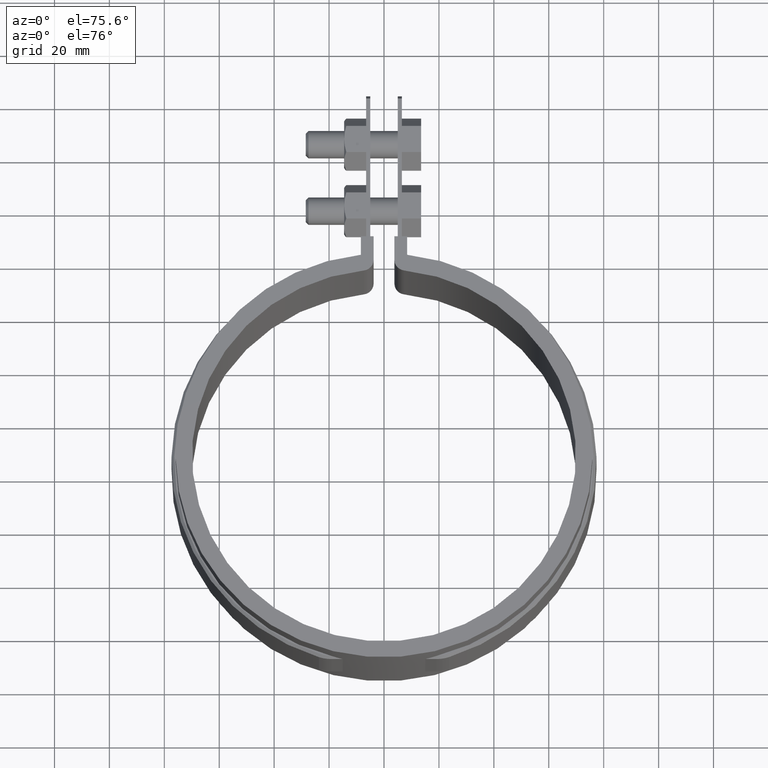
[diagram: clean part render]
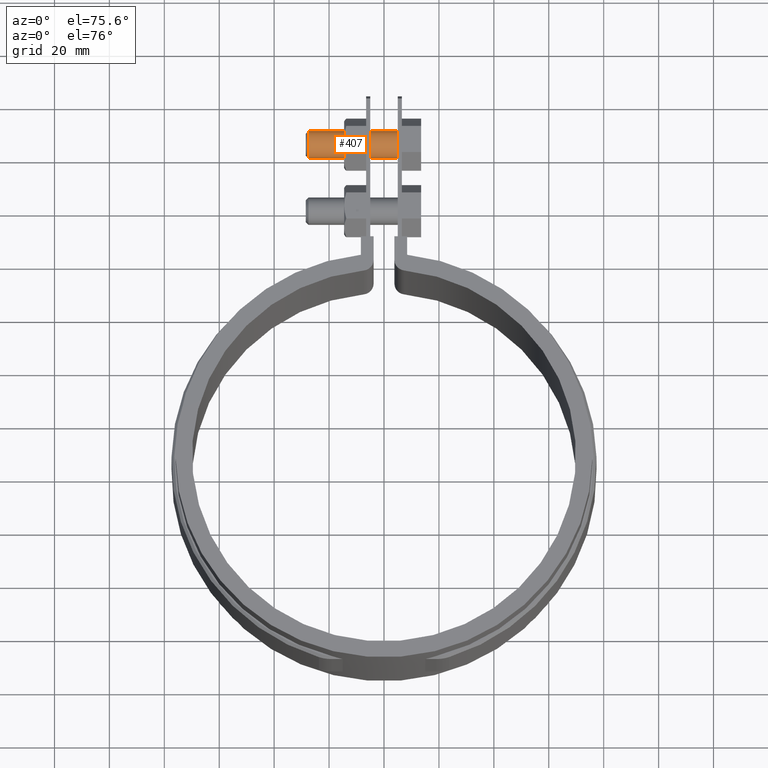
[diagram: same view with one face highlighted and labeled with its STEP entity id]
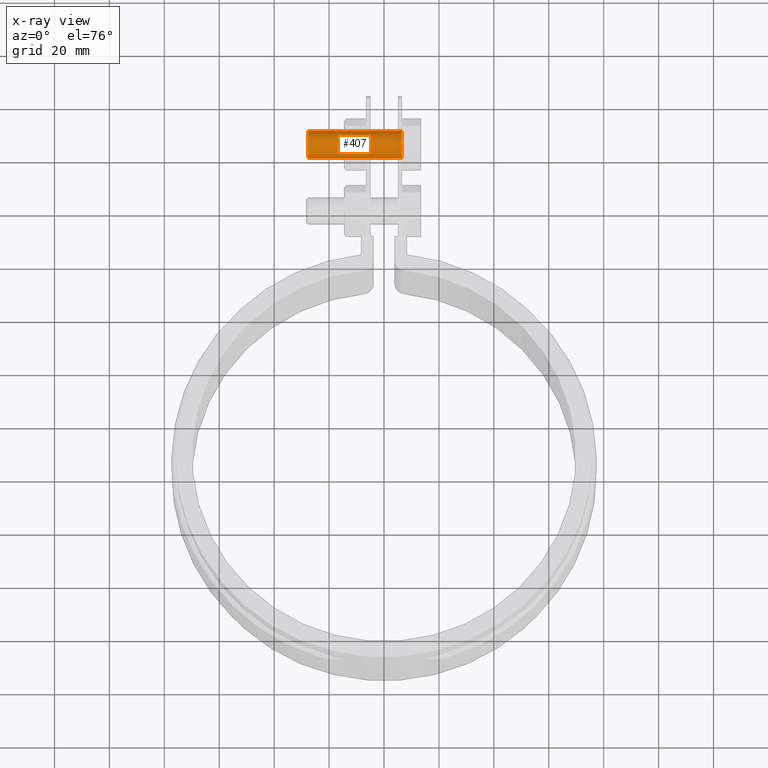
[diagram: x-ray of the same camera — body ghosted, the highlighted face saturated]
A machine part, auxiliary view. The second image highlights one B-rep face of the part: STEP entity #407.
The next image is the same camera in x-ray: the body ghosted, the highlighted face saturated — about 0% of this face is hidden behind the body in this view.
In plain terms, the highlighted cylindrical surface (bore or boss wall) has radius 5 mm, axis along (1, 0, -0).
Its self-contained STEP definition (entity closure, byte-faithful):
#407 = ADVANCED_FACE( '', ( #668, #669 ), #670, .T. );
#668 = FACE_OUTER_BOUND( '', #1746, .T. );
#669 = FACE_OUTER_BOUND( '', #1747, .T. );
#670 = CYLINDRICAL_SURFACE( '', #1748, 4.99999999999999 );
#1746 = EDGE_LOOP( '', ( #4190 ) );
#1747 = EDGE_LOOP( '', ( #4191 ) );
#1748 = AXIS2_PLACEMENT_3D( '', #4192, #4193, #4194 );
#4190 = ORIENTED_EDGE( '', *, *, #4882, .F. );
#4191 = ORIENTED_EDGE( '', *, *, #4896, .T. );
#4192 = CARTESIAN_POINT( '', ( -28.5000000000002, 121.297141712794, -16.0000000000001 ) );
#4193 = DIRECTION( '', ( 1.00000000000000, 6.02334540269725E-017, -2.37665104942788E-033 ) );
#4194 = DIRECTION( '', ( -1.54074395550980E-033, -1.38777878078146E-017, -1.00000000000000 ) );
#4882 = EDGE_CURVE( '', #5478, #5478, #5479, .T. );
#4896 = EDGE_CURVE( '', #5500, #5500, #5501, .T. );
#5478 = VERTEX_POINT( '', #8084 );
#5479 = CIRCLE( '', #8085, 4.99999999999999 );
#5500 = VERTEX_POINT( '', #8118 );
#5501 = CIRCLE( '', #8119, 4.99999999999999 );
#8084 = CARTESIAN_POINT( '', ( 6.50000000000004, 121.297141712794, -21.0000000000001 ) );
#8085 = AXIS2_PLACEMENT_3D( '', #8832, #8833, #8834 );
#8118 = CARTESIAN_POINT( '', ( -27.5000000000002, 121.297141712794, -21.0000000000001 ) );
#8119 = AXIS2_PLACEMENT_3D( '', #8850, #8851, #8852 );
#8832 = CARTESIAN_POINT( '', ( 6.50000000000004, 121.297141712794, -16.0000000000001 ) );
#8833 = DIRECTION( '', ( 1.00000000000000, 6.02334540269725E-017, -2.37665104942788E-033 ) );
#8834 = DIRECTION( '', ( -1.54074395550980E-033, -1.38777878078146E-017, -1.00000000000000 ) );
#8850 = CARTESIAN_POINT( '', ( -27.5000000000002, 121.297141712794, -16.0000000000001 ) );
#8851 = DIRECTION( '', ( 1.00000000000000, 6.02334540269725E-017, -2.37665104942788E-033 ) );
#8852 = DIRECTION( '', ( -1.54074395550980E-033, -1.38777878078146E-017, -1.00000000000000 ) );